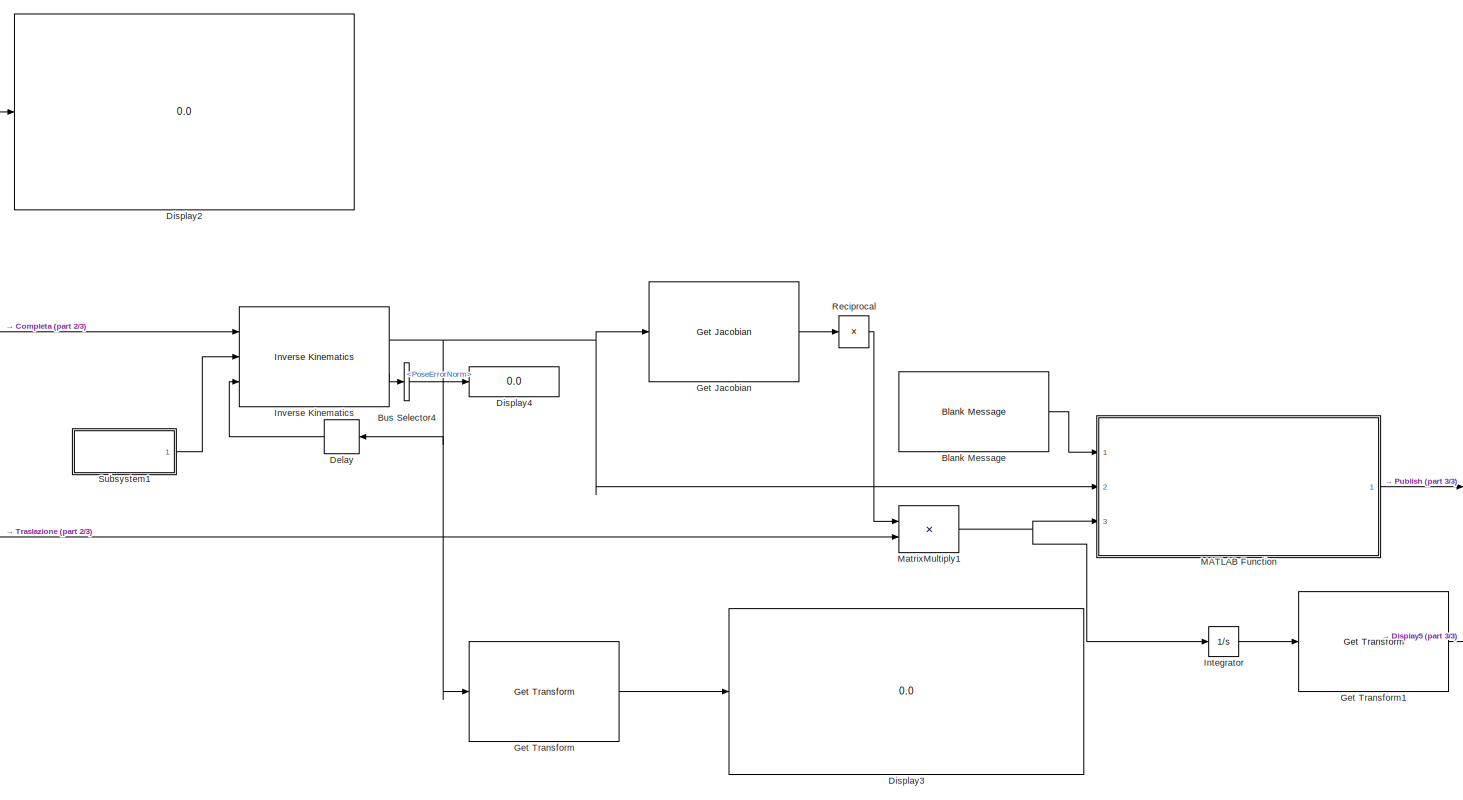
[diagram: root canvas - part 1/3, right side, full height]
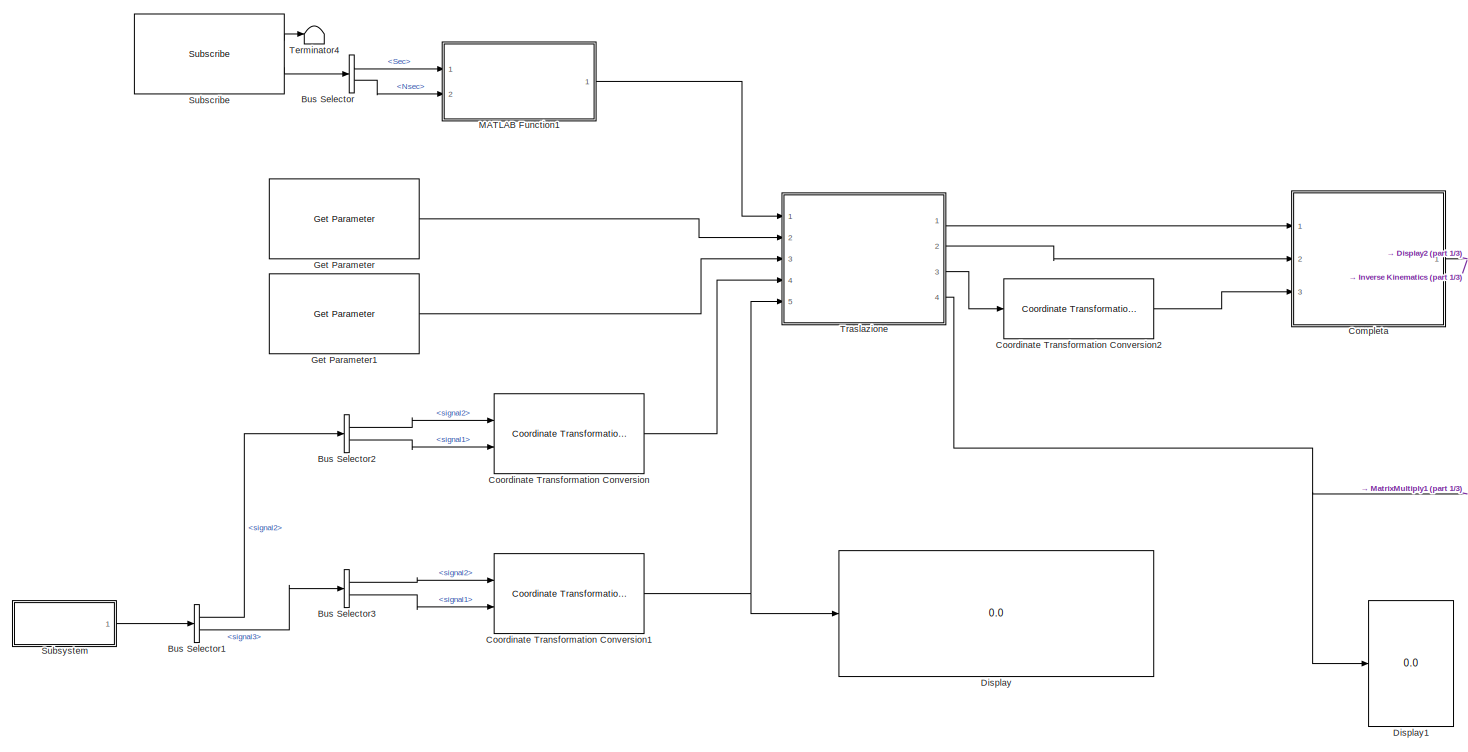
[diagram: root canvas - part 2/3, left side, full height]
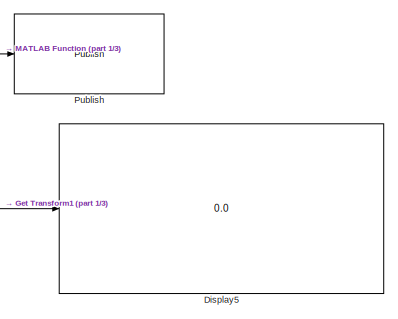
[diagram: root canvas - part 3/3, bottom right region]
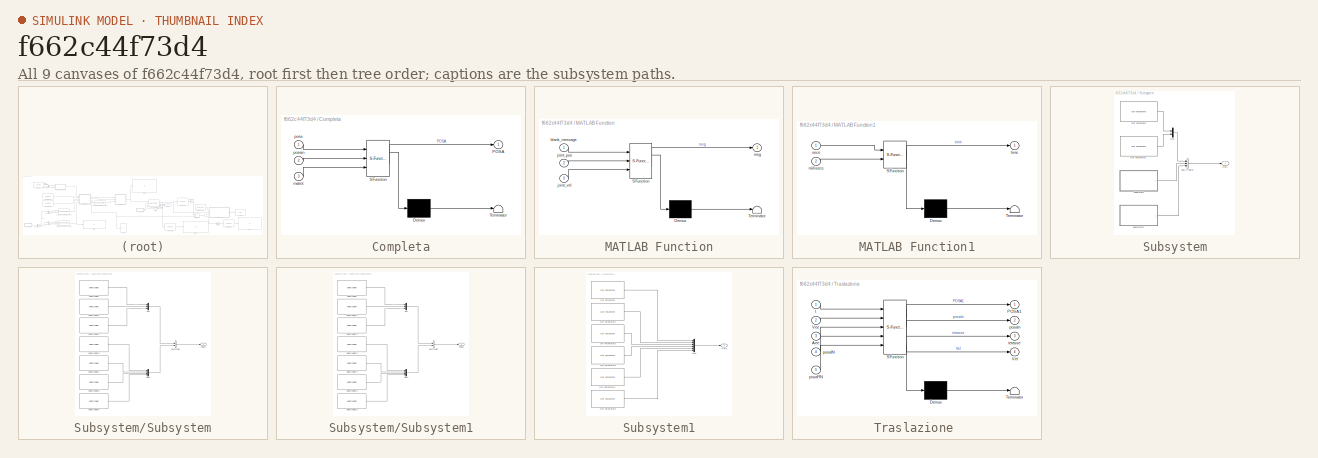
[diagram: thumbnail index - all 9 canvases of the model, root first then tree order]
MODEL slx_f662c44f73d4
KIND model
CONFIG AbsTol = auto
CONFIG EnableMultiTasking = off
CONFIG FixedStep = 0.01
CONFIG MaxStep = auto
CONFIG MinStep = auto
CONFIG RelTol = 1e-3
CONFIG SampleTimeConstraint = Unconstrained
CONFIG Solver = ode3
CONFIG SolverName = ode3
CONFIG StartTime = 0.0
CONFIG StopTime = inf
BLOCK [Reference] Blank Message  REF=robotlib/Blank Message
  Ports = [0, 1]
  SourceBlock = robotlib/Blank Message
  SourceProductBaseCode = RR
  SourceType = ROS Blank Message
BLOCK [BusSelector] Bus Selector
  OutputSignals = Clock_.Sec,Clock_.Nsec
  Ports = [1, 2]
BLOCK [BusSelector] Bus Selector1
  OutputSignals = signal2,signal3
  Ports = [1, 2]
BLOCK [BusSelector] Bus Selector2
  OutputSignals = signal2,signal1
  Ports = [1, 2]
BLOCK [BusSelector] Bus Selector3
  OutputSignals = signal2,signal1
  Ports = [1, 2]
BLOCK [BusSelector] Bus Selector4
  OutputSignals = PoseErrorNorm
  Ports = [1, 1]
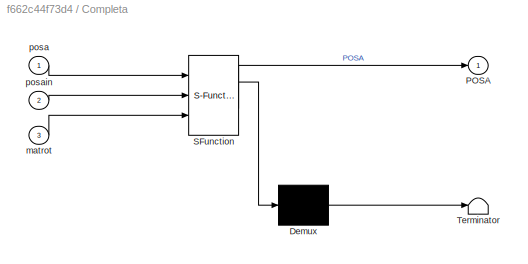
BLOCK [SubSystem] Completa
  ErrorFcn = Stateflow.Translate.translate
  PermitHierarchicalResolution = ExplicitOnly
  Ports = [3, 1]
  RequestExecContextInheritance = off
  SFBlockType = MATLAB Function
  TreatAsAtomicUnit = on
BLOCK [Demux] Completa/ Demux 
  Outputs = 1
  Ports = [1, 1]
BLOCK [S-Function] Completa/ SFunction 
  EnableBusSupport = on
  FunctionName = sf_sfun
  PortCounts = [3 2]
  Ports = [3, 2]
  SFcnIsStateOwnerBlock = off
  SFunctionDeploymentMode = off
  Tag = Stateflow S-Function 2
BLOCK [Terminator] Completa/ Terminator 
BLOCK [Outport] Completa/POSA
BLOCK [Inport] Completa/matrot
  Port = 3
BLOCK [Inport] Completa/posa
BLOCK [Inport] Completa/posain
  Port = 2
BLOCK [Reference] Coordinate Transformation Conversion  REF=robotcorelib/Coordinate Transformation Conversion
  Ports = [2, 1]
  SourceBlock = robotcorelib/Coordinate Transformation Conversion
  SourceProductBaseCode = NV,RO,RR
  SourceType = robotics.slcore.internal.block.CoordinateTransformationConversion
BLOCK [Reference] Coordinate Transformation Conversion1  REF=robotcorelib/Coordinate Transformation Conversion
  Ports = [2, 1]
  SourceBlock = robotcorelib/Coordinate Transformation Conversion
  SourceProductBaseCode = NV,RO,RR
  SourceType = robotics.slcore.internal.block.CoordinateTransformationConversion
BLOCK [Reference] Coordinate Transformation Conversion2  REF=robotcorelib/Coordinate Transformation Conversion
  Ports = [1, 1]
  SourceBlock = robotcorelib/Coordinate Transformation Conversion
  SourceProductBaseCode = NV,RO,RR
  SourceType = robotics.slcore.internal.block.CoordinateTransformationConversion
BLOCK [Delay] Delay
  DelayLength = 1
  InitialCondition = zeros(6, 1, 1)
  InputPortMap = u0
  NameLocation = top
  Ports = [1, 1]
BLOCK [Display] Display
  Decimation = 1
  Ports = [1]
BLOCK [Display] Display1
  Decimation = 1
  Ports = [1]
BLOCK [Display] Display2
  Decimation = 1
  Ports = [1]
BLOCK [Display] Display3
  Decimation = 1
  Ports = [1]
BLOCK [Display] Display4
  Decimation = 1
  Ports = [1]
BLOCK [Display] Display5
  Decimation = 1
  Ports = [1]
BLOCK [Reference] Get Jacobian  REF=robotmaniplib/Get Jacobian
  Ports = [1, 1]
  SourceBlock = robotmaniplib/Get Jacobian
  SourceProductBaseCode = RO
  SourceType = Get Jacobian
BLOCK [Reference] Get Parameter  REF=robotlib/Get Parameter
  Ports = [0, 1]
  SourceBlock = robotlib/Get Parameter
  SourceProductBaseCode = RR
  SourceType = ROS Get Parameter
BLOCK [Reference] Get Parameter1  REF=robotlib/Get Parameter
  Ports = [0, 1]
  SourceBlock = robotlib/Get Parameter
  SourceProductBaseCode = RR
  SourceType = ROS Get Parameter
BLOCK [Reference] Get Transform  REF=robotmaniplib/Get Transform
  Ports = [1, 1]
  SourceBlock = robotmaniplib/Get Transform
  SourceProductBaseCode = RO
  SourceType = Get Transform
BLOCK [Reference] Get Transform1  REF=robotmaniplib/Get Transform
  Ports = [1, 1]
  SourceBlock = robotmaniplib/Get Transform
  SourceProductBaseCode = RO
  SourceType = Get Transform
BLOCK [Integrator] Integrator
  Ports = [1, 1]
BLOCK [Reference] Inverse Kinematics  REF=robotmaniplib/Inverse Kinematics
  Ports = [3, 2]
  SourceBlock = robotmaniplib/Inverse Kinematics
  SourceProductBaseCode = RO
  SourceType = Inverse Kinematics
BLOCK [SubSystem] MATLAB Function
  ErrorFcn = Stateflow.Translate.translate
  PermitHierarchicalResolution = ExplicitOnly
  Ports = [3, 1]
  RequestExecContextInheritance = off
  SFBlockType = MATLAB Function
  TreatAsAtomicUnit = on
BLOCK [Demux] MATLAB Function/ Demux 
  Outputs = 1
  Ports = [1, 1]
BLOCK [S-Function] MATLAB Function/ SFunction 
  EnableBusSupport = on
  FunctionName = sf_sfun
  PortCounts = [3 2]
  Ports = [3, 2]
  SFcnIsStateOwnerBlock = off
  SFunctionDeploymentMode = off
  Tag = Stateflow S-Function 1
BLOCK [Terminator] MATLAB Function/ Terminator 
BLOCK [Inport] MATLAB Function/blank_message
BLOCK [Inport] MATLAB Function/joint_pos
  Port = 2
BLOCK [Inport] MATLAB Function/joint_vel
  Port = 3
BLOCK [Outport] MATLAB Function/msg
BLOCK [SubSystem] MATLAB Function1
  ErrorFcn = Stateflow.Translate.translate
  PermitHierarchicalResolution = ExplicitOnly
  Ports = [2, 1]
  RequestExecContextInheritance = off
  SFBlockType = MATLAB Function
  TreatAsAtomicUnit = on
BLOCK [Demux] MATLAB Function1/ Demux 
  Outputs = 1
  Ports = [1, 1]
BLOCK [S-Function] MATLAB Function1/ SFunction 
  EnableBusSupport = on
  FunctionName = sf_sfun
  PortCounts = [2 2]
  Ports = [2, 2]
  SFcnIsStateOwnerBlock = off
  SFunctionDeploymentMode = off
  Tag = Stateflow S-Function 4
BLOCK [Terminator] MATLAB Function1/ Terminator 
BLOCK [Inport] MATLAB Function1/millisecs
  Port = 2
BLOCK [Inport] MATLAB Function1/secs
BLOCK [Outport] MATLAB Function1/time
BLOCK [Product] MatrixMultiply1
  Multiplication = Matrix(*)
  Ports = [2, 1]
BLOCK [Reference] Publish  REF=robotlib/Publish
  Ports = [1]
  SourceBlock = robotlib/Publish
  SourceProductBaseCode = RR
  SourceType = ROS Publish
BLOCK [Product] Reciprocal
  Inputs = /
  Multiplication = Matrix(*)
  Ports = [1, 1]
BLOCK [Reference] Subscribe  REF=robotlib/Subscribe
  Ports = [0, 2]
  SourceBlock = robotlib/Subscribe
  SourceProductBaseCode = RR
  SourceType = ROS Subscribe
BLOCK [SubSystem] Subsystem
  Ports = [0, 1]
  RequestExecContextInheritance = off
BLOCK [BusCreator] Subsystem/Bus Creator
  DisplayOption = bar
  InheritFromInputs = on
  Inputs = 3
  Ports = [3, 1]
BLOCK [Reference] Subsystem/Get Parameter  REF=robotlib/Get Parameter
  Ports = [0, 1]
  SourceBlock = robotlib/Get Parameter
  SourceProductBaseCode = RR
  SourceType = ROS Get Parameter
BLOCK [Reference] Subsystem/Get Parameter1  REF=robotlib/Get Parameter
  Ports = [0, 1]
  SourceBlock = robotlib/Get Parameter
  SourceProductBaseCode = RR
  SourceType = ROS Get Parameter
BLOCK [Mux] Subsystem/Mux
  DisplayOption = bar
  Inputs = 2
  Ports = [2, 1]
BLOCK [Outport] Subsystem/Out1
BLOCK [SubSystem] Subsystem/Subsystem
  Ports = [0, 1]
  RequestExecContextInheritance = off
BLOCK [BusCreator] Subsystem/Subsystem/Bus Creator
  DisplayOption = bar
  InheritFromInputs = on
  Inputs = 2
  Ports = [2, 1]
BLOCK [Reference] Subsystem/Subsystem/Get Parameter  REF=robotlib/Get Parameter
  Ports = [0, 1]
  SourceBlock = robotlib/Get Parameter
  SourceProductBaseCode = RR
  SourceType = ROS Get Parameter
BLOCK [Reference] Subsystem/Subsystem/Get Parameter1  REF=robotlib/Get Parameter
  Ports = [0, 1]
  SourceBlock = robotlib/Get Parameter
  SourceProductBaseCode = RR
  SourceType = ROS Get Parameter
BLOCK [Reference] Subsystem/Subsystem/Get Parameter2  REF=robotlib/Get Parameter
  Ports = [0, 1]
  SourceBlock = robotlib/Get Parameter
  SourceProductBaseCode = RR
  SourceType = ROS Get Parameter
BLOCK [Reference] Subsystem/Subsystem/Get Parameter3  REF=robotlib/Get Parameter
  Ports = [0, 1]
  SourceBlock = robotlib/Get Parameter
  SourceProductBaseCode = RR
  SourceType = ROS Get Parameter
BLOCK [Reference] Subsystem/Subsystem/Get Parameter4  REF=robotlib/Get Parameter
  Ports = [0, 1]
  SourceBlock = robotlib/Get Parameter
  SourceProductBaseCode = RR
  SourceType = ROS Get Parameter
BLOCK [Reference] Subsystem/Subsystem/Get Parameter5  REF=robotlib/Get Parameter
  Ports = [0, 1]
  SourceBlock = robotlib/Get Parameter
  SourceProductBaseCode = RR
  SourceType = ROS Get Parameter
BLOCK [Reference] Subsystem/Subsystem/Get Parameter6  REF=robotlib/Get Parameter
  Ports = [0, 1]
  SourceBlock = robotlib/Get Parameter
  SourceProductBaseCode = RR
  SourceType = ROS Get Parameter
BLOCK [Mux] Subsystem/Subsystem/Mux
  DisplayOption = bar
  Inputs = 3
  Ports = [3, 1]
BLOCK [Mux] Subsystem/Subsystem/Mux1
  DisplayOption = bar
  Ports = [4, 1]
BLOCK [Outport] Subsystem/Subsystem/Output
BLOCK [SubSystem] Subsystem/Subsystem1
  Ports = [0, 1]
  RequestExecContextInheritance = off
BLOCK [BusCreator] Subsystem/Subsystem1/Bus Creator
  DisplayOption = bar
  InheritFromInputs = on
  Inputs = 2
  Ports = [2, 1]
BLOCK [Reference] Subsystem/Subsystem1/Get Parameter  REF=robotlib/Get Parameter
  Ports = [0, 1]
  SourceBlock = robotlib/Get Parameter
  SourceProductBaseCode = RR
  SourceType = ROS Get Parameter
BLOCK [Reference] Subsystem/Subsystem1/Get Parameter1  REF=robotlib/Get Parameter
  Ports = [0, 1]
  SourceBlock = robotlib/Get Parameter
  SourceProductBaseCode = RR
  SourceType = ROS Get Parameter
BLOCK [Reference] Subsystem/Subsystem1/Get Parameter2  REF=robotlib/Get Parameter
  Ports = [0, 1]
  SourceBlock = robotlib/Get Parameter
  SourceProductBaseCode = RR
  SourceType = ROS Get Parameter
BLOCK [Reference] Subsystem/Subsystem1/Get Parameter3  REF=robotlib/Get Parameter
  Ports = [0, 1]
  SourceBlock = robotlib/Get Parameter
  SourceProductBaseCode = RR
  SourceType = ROS Get Parameter
BLOCK [Reference] Subsystem/Subsystem1/Get Parameter4  REF=robotlib/Get Parameter
  Ports = [0, 1]
  SourceBlock = robotlib/Get Parameter
  SourceProductBaseCode = RR
  SourceType = ROS Get Parameter
BLOCK [Reference] Subsystem/Subsystem1/Get Parameter5  REF=robotlib/Get Parameter
  Ports = [0, 1]
  SourceBlock = robotlib/Get Parameter
  SourceProductBaseCode = RR
  SourceType = ROS Get Parameter
BLOCK [Reference] Subsystem/Subsystem1/Get Parameter6  REF=robotlib/Get Parameter
  Ports = [0, 1]
  SourceBlock = robotlib/Get Parameter
  SourceProductBaseCode = RR
  SourceType = ROS Get Parameter
BLOCK [Mux] Subsystem/Subsystem1/Mux
  DisplayOption = bar
  Inputs = 3
  Ports = [3, 1]
BLOCK [Mux] Subsystem/Subsystem1/Mux1
  DisplayOption = bar
  Ports = [4, 1]
BLOCK [Outport] Subsystem/Subsystem1/Output
BLOCK [SubSystem] Subsystem1
  Ports = [0, 1]
  RequestExecContextInheritance = off
BLOCK [Reference] Subsystem1/Get Parameter  REF=robotlib/Get Parameter
  Ports = [0, 1]
  SourceBlock = robotlib/Get Parameter
  SourceProductBaseCode = RR
  SourceType = ROS Get Parameter
BLOCK [Reference] Subsystem1/Get Parameter1  REF=robotlib/Get Parameter
  Ports = [0, 1]
  SourceBlock = robotlib/Get Parameter
  SourceProductBaseCode = RR
  SourceType = ROS Get Parameter
BLOCK [Reference] Subsystem1/Get Parameter2  REF=robotlib/Get Parameter
  Ports = [0, 1]
  SourceBlock = robotlib/Get Parameter
  SourceProductBaseCode = RR
  SourceType = ROS Get Parameter
BLOCK [Reference] Subsystem1/Get Parameter3  REF=robotlib/Get Parameter
  Ports = [0, 1]
  SourceBlock = robotlib/Get Parameter
  SourceProductBaseCode = RR
  SourceType = ROS Get Parameter
BLOCK [Reference] Subsystem1/Get Parameter4  REF=robotlib/Get Parameter
  Ports = [0, 1]
  SourceBlock = robotlib/Get Parameter
  SourceProductBaseCode = RR
  SourceType = ROS Get Parameter
BLOCK [Reference] Subsystem1/Get Parameter5  REF=robotlib/Get Parameter
  Ports = [0, 1]
  SourceBlock = robotlib/Get Parameter
  SourceProductBaseCode = RR
  SourceType = ROS Get Parameter
BLOCK [Mux] Subsystem1/Mux
  DisplayOption = bar
  Inputs = 6
  Ports = [6, 1]
BLOCK [Outport] Subsystem1/Out1
BLOCK [Terminator] Terminator4
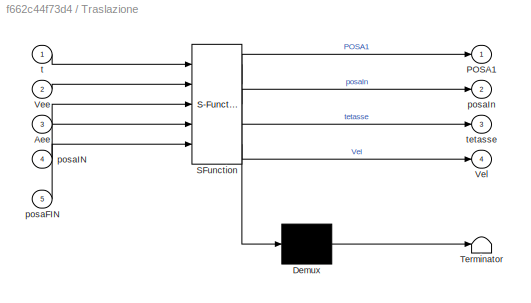
BLOCK [SubSystem] Traslazione 
  ErrorFcn = Stateflow.Translate.translate
  PermitHierarchicalResolution = ExplicitOnly
  Ports = [5, 4]
  RequestExecContextInheritance = off
  SFBlockType = MATLAB Function
  TreatAsAtomicUnit = on
BLOCK [Demux] Traslazione / Demux 
  Outputs = 1
  Ports = [1, 1]
BLOCK [S-Function] Traslazione / SFunction 
  EnableBusSupport = on
  FunctionName = sf_sfun
  PortCounts = [5 5]
  Ports = [5, 5]
  SFcnIsStateOwnerBlock = off
  SFunctionDeploymentMode = off
  Tag = Stateflow S-Function 3
BLOCK [Terminator] Traslazione / Terminator 
BLOCK [Inport] Traslazione /Aee
  Port = 3
BLOCK [Outport] Traslazione /POSA1
BLOCK [Inport] Traslazione /Vee
  Port = 2
BLOCK [Outport] Traslazione /Vel
  Port = 4
BLOCK [Inport] Traslazione /posaFIN
  Port = 5
BLOCK [Inport] Traslazione /posaIN
  Port = 4
BLOCK [Outport] Traslazione /posaIn
  Port = 2
BLOCK [Inport] Traslazione /t
BLOCK [Outport] Traslazione /tetasse
  Port = 3
LINE Blank Message:1 -> MATLAB Function:1
LINE Bus Selector1:1 -> Bus Selector2:1
LINE Bus Selector1:2 -> Bus Selector3:1
LINE Bus Selector2:1 -> Coordinate Transformation Conversion:1
LINE Bus Selector2:2 -> Coordinate Transformation Conversion:2
LINE Bus Selector3:1 -> Coordinate Transformation Conversion1:1
LINE Bus Selector3:2 -> Coordinate Transformation Conversion1:2
LINE Bus Selector4:1 -> Display4:1
LINE Bus Selector:1 -> MATLAB Function1:1
LINE Bus Selector:2 -> MATLAB Function1:2
NET Completa:1 -> Display2:1, Inverse Kinematics:1
NET Coordinate Transformation Conversion1:1 -> Display:1, Traslazione :5
LINE Coordinate Transformation Conversion2:1 -> Completa:3
LINE Coordinate Transformation Conversion:1 -> Traslazione :4
LINE Delay:1 -> Inverse Kinematics:3
LINE Get Jacobian:1 -> Reciprocal:1
LINE Get Parameter1:1 -> Traslazione :3
LINE Get Parameter:1 -> Traslazione :2
LINE Get Transform1:1 -> Display5:1
LINE Get Transform:1 -> Display3:1
LINE Integrator:1 -> Get Transform1:1
NET Inverse Kinematics:1 -> Delay:1, Get Jacobian:1, Get Transform:1, MATLAB Function:2
LINE Inverse Kinematics:2 -> Bus Selector4:1
LINE MATLAB Function1:1 -> Traslazione :1
LINE MATLAB Function:1 -> Publish:1
NET MatrixMultiply1:1 -> Integrator:1, MATLAB Function:3
LINE Reciprocal:1 -> MatrixMultiply1:1
LINE Subscribe:1 -> Terminator4:1
LINE Subscribe:2 -> Bus Selector:1
LINE Subsystem/Bus Creator:1 -> Subsystem/Out1:1
LINE Subsystem/Get Parameter1:1 -> Subsystem/Mux:2
LINE Subsystem/Get Parameter:1 -> Subsystem/Mux:1
LINE Subsystem/Mux:1 -> Subsystem/Bus Creator:1
LINE Subsystem/Subsystem/Bus Creator:1 -> Subsystem/Subsystem/Output:1
LINE Subsystem/Subsystem/Get Parameter1:1 -> Subsystem/Subsystem/Mux:2
LINE Subsystem/Subsystem/Get Parameter2:1 -> Subsystem/Subsystem/Mux:3
LINE Subsystem/Subsystem/Get Parameter3:1 -> Subsystem/Subsystem/Mux1:1
LINE Subsystem/Subsystem/Get Parameter4:1 -> Subsystem/Subsystem/Mux1:2
LINE Subsystem/Subsystem/Get Parameter5:1 -> Subsystem/Subsystem/Mux1:3
LINE Subsystem/Subsystem/Get Parameter6:1 -> Subsystem/Subsystem/Mux1:4
LINE Subsystem/Subsystem/Get Parameter:1 -> Subsystem/Subsystem/Mux:1
LINE Subsystem/Subsystem/Mux1:1 -> Subsystem/Subsystem/Bus Creator:2
LINE Subsystem/Subsystem/Mux:1 -> Subsystem/Subsystem/Bus Creator:1
LINE Subsystem/Subsystem1/Bus Creator:1 -> Subsystem/Subsystem1/Output:1
LINE Subsystem/Subsystem1/Get Parameter1:1 -> Subsystem/Subsystem1/Mux:2
LINE Subsystem/Subsystem1/Get Parameter2:1 -> Subsystem/Subsystem1/Mux:3
LINE Subsystem/Subsystem1/Get Parameter3:1 -> Subsystem/Subsystem1/Mux1:1
LINE Subsystem/Subsystem1/Get Parameter4:1 -> Subsystem/Subsystem1/Mux1:2
LINE Subsystem/Subsystem1/Get Parameter5:1 -> Subsystem/Subsystem1/Mux1:3
LINE Subsystem/Subsystem1/Get Parameter6:1 -> Subsystem/Subsystem1/Mux1:4
LINE Subsystem/Subsystem1/Get Parameter:1 -> Subsystem/Subsystem1/Mux:1
LINE Subsystem/Subsystem1/Mux1:1 -> Subsystem/Subsystem1/Bus Creator:2
LINE Subsystem/Subsystem1/Mux:1 -> Subsystem/Subsystem1/Bus Creator:1
LINE Subsystem/Subsystem1:1 -> Subsystem/Bus Creator:3
LINE Subsystem/Subsystem:1 -> Subsystem/Bus Creator:2
LINE Subsystem1/Get Parameter1:1 -> Subsystem1/Mux:2
LINE Subsystem1/Get Parameter2:1 -> Subsystem1/Mux:3
LINE Subsystem1/Get Parameter3:1 -> Subsystem1/Mux:4
LINE Subsystem1/Get Parameter4:1 -> Subsystem1/Mux:5
LINE Subsystem1/Get Parameter5:1 -> Subsystem1/Mux:6
LINE Subsystem1/Get Parameter:1 -> Subsystem1/Mux:1
LINE Subsystem1/Mux:1 -> Subsystem1/Out1:1
LINE Subsystem1:1 -> Inverse Kinematics:2
LINE Subsystem:1 -> Bus Selector1:1
LINE Traslazione :1 -> Completa:1
LINE Traslazione :2 -> Completa:2
LINE Traslazione :3 -> Coordinate Transformation Conversion2:1
NET Traslazione :4 -> Display1:1, MatrixMultiply1:2
note: NET lines group one-source signal fan-out (src -> all destinations, sorted); 1:1 wires keep LINE
CHART MATLAB Function states=1 transitions=1
  STATE_LABEL 'eML_blk_kernel()'
  STATE_LABEL 'SCRIPT:\nfunction msg = assign_trajectory(blank_message, joint_pos, joint_vel)\n\n    msg = blank_message;\n    numJoints = length(joint_vel);\n    msg.Velocities_SL_Info.CurrentLength = uint32(numJoints);\n    msg.Velocities(1:numJoints) = joint_vel;\n    msg.Positions_SL_Info.CurrentLength = uint32(numJoints);\n    msg.Positions(1:numJoints) = joint_pos;\n    '
CHART Completa states=1 transitions=1
  STATE_LABEL 'eML_blk_kernel()'
  STATE_LABEL 'SCRIPT:\nfunction POSA  = fcn(posa, posain, matrot)\n\nmatFIN=posain(1:3,1:3)*matrot;\nposa(1:3,1:3)=matFIN;\nPOSA=posa;\n\n'
CHART Traslazione
 states=1 transitions=1
  STATE_LABEL 'eML_blk_kernel()'
  STATE_LABEL 'SCRIPT:\nfunction [POSA1,posaIn,tetasse,Vel] = fcn(t, Vee, Aee, posaIN, posaFIN)\n\n% sia per s che per teta\n\ntc=Vee/Aee;\nSpMax=tc*Vee;\nVel=[0;0;0;0;0;0];\n\n% Traslazione\n\nPosIn=posaIN(1:3,4);\nPosFin=posaFIN(1:3,4);\nP=zeros(3,1);\nPOSA1=zeros(4,4);\nposaIn=posaIN;\ns=0;\ns_vel=0;\n\n% profilo di velocità di s\n\n% 1) triangolare\n\nif(SpMax>=norm(PosFin-PosIn))\n    \n    tcstar=sqrt(norm(PosFin-PosIn)/Aee);\n    ...<+2397ch>'
CHART MATLAB Function1 states=1 transitions=1
  STATE_LABEL 'eML_blk_kernel()'
  STATE_LABEL 'SCRIPT:\nfunction time = get_time(secs, millisecs)\n\n    time = secs + millisecs / 1e9;\n    \n'
CHART  states=0 transitions=0
CHART  states=0 transitions=0
CHART  states=0 transitions=0
CHART  states=0 transitions=0
